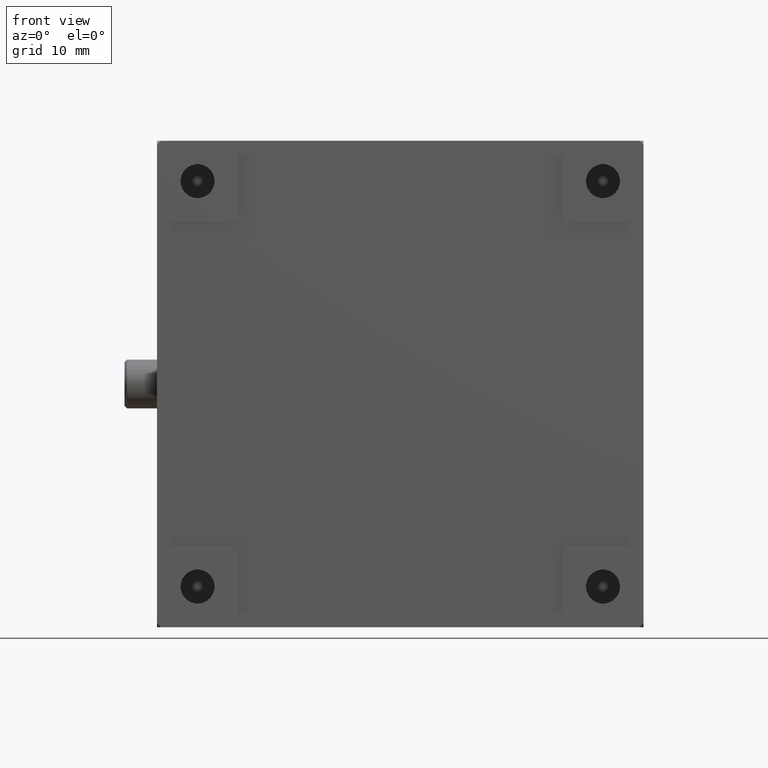
[diagram: clean part render]
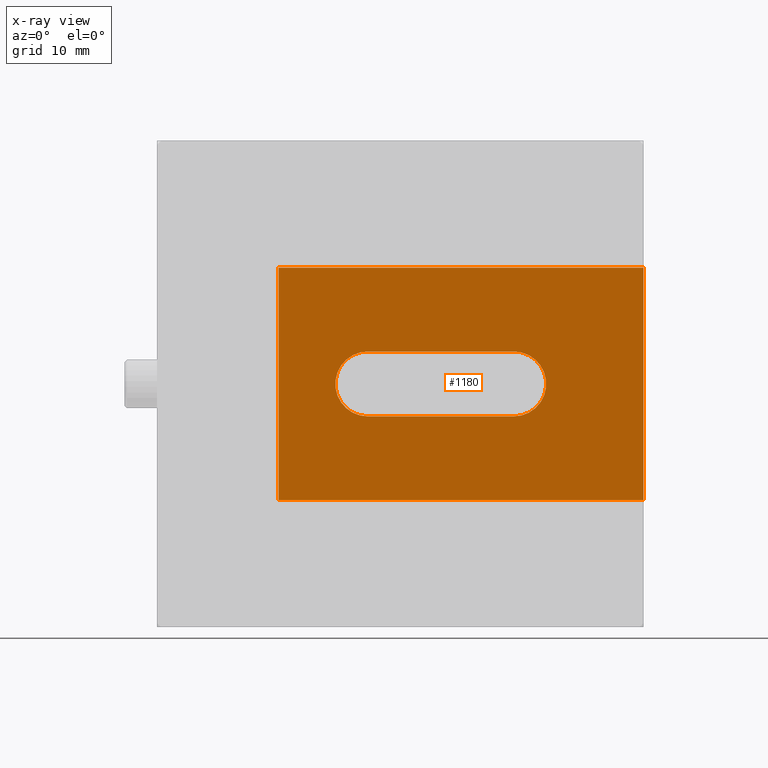
[diagram: x-ray — body ghosted, one internal face saturated and labeled with its STEP entity id]
A machine part, front view, then the same camera in x-ray: the body is ghosted and one INTERNAL B-rep face — a face not visible from any outside direction — is saturated and labeled: STEP entity #1180.
In plain terms, the highlighted planar face has unit normal (0, 1, 0).
Its self-contained STEP definition (entity closure, byte-faithful):
#44 = VERTEX_POINT ( 'NONE', #3378 ) ;
#261 = EDGE_LOOP ( 'NONE', ( #2706, #1100, #801, #1500 ) ) ;
#372 = FACE_BOUND ( 'NONE', #3158, .T. ) ;
#482 = CARTESIAN_POINT ( 'NONE',  ( 44.00000000000000000, 7.000000000000000888, 34.00000000000000000 ) ) ;
#530 = VECTOR ( 'NONE', #2696, 1000.000000000000000 ) ;
#567 = CARTESIAN_POINT ( 'NONE',  ( 15.00000000000000000, 7.000000000000000888, 26.00000000000000355 ) ) ;
#630 = EDGE_CURVE ( 'NONE', #2794, #2027, #3396, .T. ) ;
#681 = ORIENTED_EDGE ( 'NONE', *, *, #1327, .F. ) ;
#717 = DIRECTION ( 'NONE',  ( 1.000000000000000000, 0.000000000000000000, 0.000000000000000000 ) ) ;
#723 = CARTESIAN_POINT ( 'NONE',  ( 44.00000000000000000, 7.000000000000000888, 30.00000000000000000 ) ) ;
#763 = DIRECTION ( 'NONE',  ( 1.000000000000000000, 0.000000000000000000, 0.000000000000000000 ) ) ;
#777 = CARTESIAN_POINT ( 'NONE',  ( 44.00000000000000000, 7.000000000000000888, 26.00000000000000355 ) ) ;
#801 = ORIENTED_EDGE ( 'NONE', *, *, #2007, .F. ) ;
#822 = CARTESIAN_POINT ( 'NONE',  ( 60.00000000000000000, 7.000000000000000888, 0.000000000000000000 ) ) ;
#962 = VERTEX_POINT ( 'NONE', #2194 ) ;
#990 = VECTOR ( 'NONE', #1812, 1000.000000000000000 ) ;
#1050 = EDGE_CURVE ( 'NONE', #2397, #44, #1367, .T. ) ;
#1051 = VECTOR ( 'NONE', #2026, 1000.000000000000000 ) ;
#1079 = CARTESIAN_POINT ( 'NONE',  ( 15.00000000000000000, 7.000000000000000888, 15.66900000000000226 ) ) ;
#1083 = LINE ( 'NONE', #567, #1051 ) ;
#1100 = ORIENTED_EDGE ( 'NONE', *, *, #1050, .F. ) ;
#1105 = CIRCLE ( 'NONE', #2612, 4.000000000000003553 ) ;
#1106 = CIRCLE ( 'NONE', #3339, 4.000000000000000000 ) ;
#1180 = ADVANCED_FACE ( 'NONE', ( #372, #2977 ), #2694, .F. ) ;
#1275 = CARTESIAN_POINT ( 'NONE',  ( 15.00000000000000000, 7.000000000000000888, 15.66900000000000226 ) ) ;
#1327 = EDGE_CURVE ( 'NONE', #2112, #962, #1106, .T. ) ;
#1367 = LINE ( 'NONE', #1079, #1940 ) ;
#1476 = CARTESIAN_POINT ( 'NONE',  ( 15.00000000000000000, 7.000000000000000888, 15.66900000000000226 ) ) ;
#1495 = DIRECTION ( 'NONE',  ( 0.000000000000000000, 1.000000000000000000, 0.000000000000000000 ) ) ;
#1500 = ORIENTED_EDGE ( 'NONE', *, *, #630, .T. ) ;
#1559 = EDGE_CURVE ( 'NONE', #3305, #2112, #2632, .T. ) ;
#1573 = LINE ( 'NONE', #2738, #530 ) ;
#1647 = DIRECTION ( 'NONE',  ( 0.000000000000000000, 0.000000000000000000, 1.000000000000000000 ) ) ;
#1758 = ORIENTED_EDGE ( 'NONE', *, *, #3423, .F. ) ;
#1781 = DIRECTION ( 'NONE',  ( -1.000000000000000000, 0.000000000000000000, 0.000000000000000000 ) ) ;
#1812 = DIRECTION ( 'NONE',  ( -1.000000000000000000, 0.000000000000000000, 0.000000000000000000 ) ) ;
#1891 = CARTESIAN_POINT ( 'NONE',  ( 60.00000000000000000, 6.999999999999999112, 15.66900000000000226 ) ) ;
#1940 = VECTOR ( 'NONE', #1647, 1000.000000000000000 ) ;
#2007 = EDGE_CURVE ( 'NONE', #2794, #2397, #3307, .T. ) ;
#2026 = DIRECTION ( 'NONE',  ( 1.000000000000000000, -0.000000000000000000, -0.000000000000000000 ) ) ;
#2027 = VERTEX_POINT ( 'NONE', #3046 ) ;
#2112 = VERTEX_POINT ( 'NONE', #2247 ) ;
#2194 = CARTESIAN_POINT ( 'NONE',  ( 26.00000000000000355, 7.000000000000000888, 26.00000000000000355 ) ) ;
#2247 = CARTESIAN_POINT ( 'NONE',  ( 26.00000000000000355, 7.000000000000000888, 34.00000000000000000 ) ) ;
#2397 = VERTEX_POINT ( 'NONE', #3555 ) ;
#2403 = VECTOR ( 'NONE', #2420, 1000.000000000000000 ) ;
#2406 = EDGE_CURVE ( 'NONE', #2027, #44, #1573, .T. ) ;
#2420 = DIRECTION ( 'NONE',  ( -1.000000000000000000, 0.000000000000000000, 0.000000000000000000 ) ) ;
#2504 = VERTEX_POINT ( 'NONE', #777 ) ;
#2532 = AXIS2_PLACEMENT_3D ( 'NONE', #1476, #1495, #1781 ) ;
#2612 = AXIS2_PLACEMENT_3D ( 'NONE', #723, #3612, #763 ) ;
#2632 = LINE ( 'NONE', #2892, #990 ) ;
#2694 = PLANE ( 'NONE',  #2532 ) ;
#2696 = DIRECTION ( 'NONE',  ( -1.000000000000000000, 0.000000000000000000, 0.000000000000000000 ) ) ;
#2706 = ORIENTED_EDGE ( 'NONE', *, *, #2406, .T. ) ;
#2738 = CARTESIAN_POINT ( 'NONE',  ( 15.00000000000000000, 7.000000000000000888, 44.32999999999999829 ) ) ;
#2794 = VERTEX_POINT ( 'NONE', #1891 ) ;
#2892 = CARTESIAN_POINT ( 'NONE',  ( 15.00000000000000000, 7.000000000000000888, 34.00000000000000000 ) ) ;
#2925 = ORIENTED_EDGE ( 'NONE', *, *, #3683, .F. ) ;
#2977 = FACE_OUTER_BOUND ( 'NONE', #261, .T. ) ;
#3046 = CARTESIAN_POINT ( 'NONE',  ( 60.00000000000000000, 6.999999999999999112, 44.33000000000000540 ) ) ;
#3158 = EDGE_LOOP ( 'NONE', ( #1758, #681, #3614, #2925 ) ) ;
#3305 = VERTEX_POINT ( 'NONE', #482 ) ;
#3307 = LINE ( 'NONE', #1275, #2403 ) ;
#3339 = AXIS2_PLACEMENT_3D ( 'NONE', #3589, #3573, #717 ) ;
#3378 = CARTESIAN_POINT ( 'NONE',  ( 15.00000000000000000, 7.000000000000002665, 44.32999999999999829 ) ) ;
#3396 = LINE ( 'NONE', #822, #3543 ) ;
#3423 = EDGE_CURVE ( 'NONE', #962, #2504, #1083, .T. ) ;
#3543 = VECTOR ( 'NONE', #3603, 1000.000000000000000 ) ;
#3555 = CARTESIAN_POINT ( 'NONE',  ( 15.00000000000000000, 6.999999999999999112, 15.66900000000000581 ) ) ;
#3573 = DIRECTION ( 'NONE',  ( 0.000000000000000000, -1.000000000000000000, 0.000000000000000000 ) ) ;
#3589 = CARTESIAN_POINT ( 'NONE',  ( 26.00000000000000355, 7.000000000000000888, 30.00000000000000000 ) ) ;
#3603 = DIRECTION ( 'NONE',  ( 0.000000000000000000, 0.000000000000000000, 1.000000000000000000 ) ) ;
#3612 = DIRECTION ( 'NONE',  ( 0.000000000000000000, -1.000000000000000000, 0.000000000000000000 ) ) ;
#3614 = ORIENTED_EDGE ( 'NONE', *, *, #1559, .F. ) ;
#3683 = EDGE_CURVE ( 'NONE', #2504, #3305, #1105, .T. ) ;